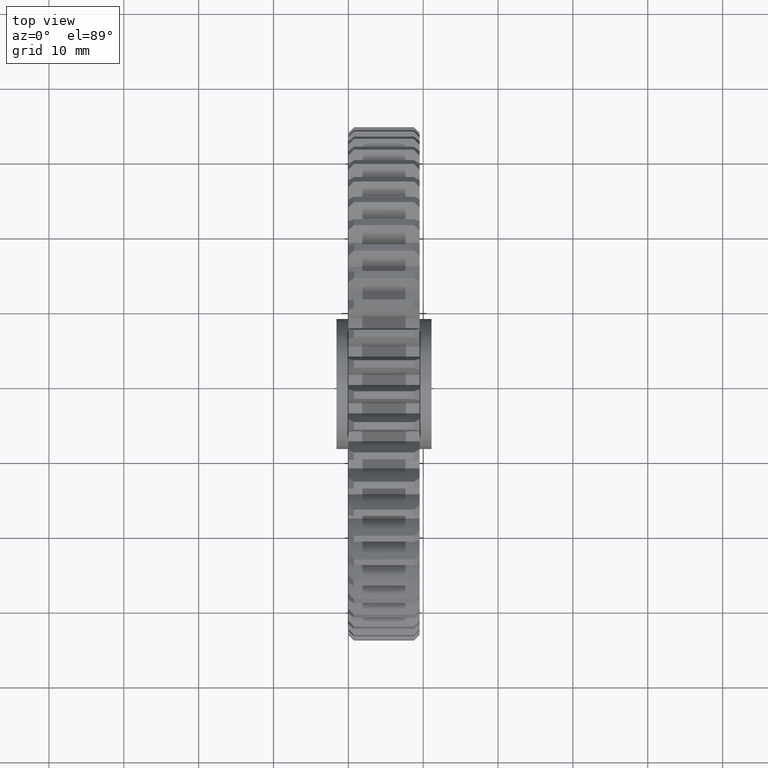
[diagram: clean part render]
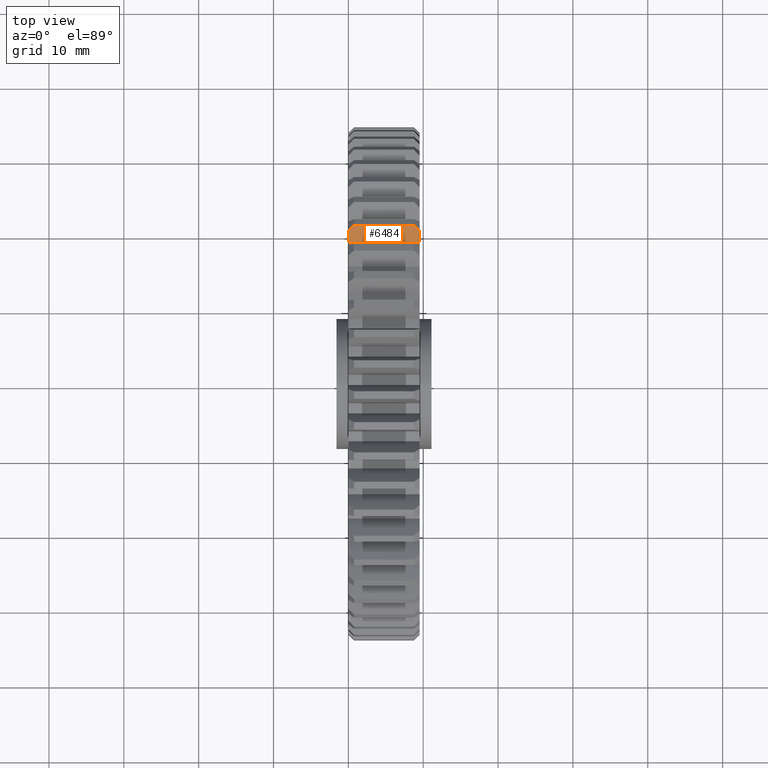
[diagram: same view with one face highlighted and labeled with its STEP entity id]
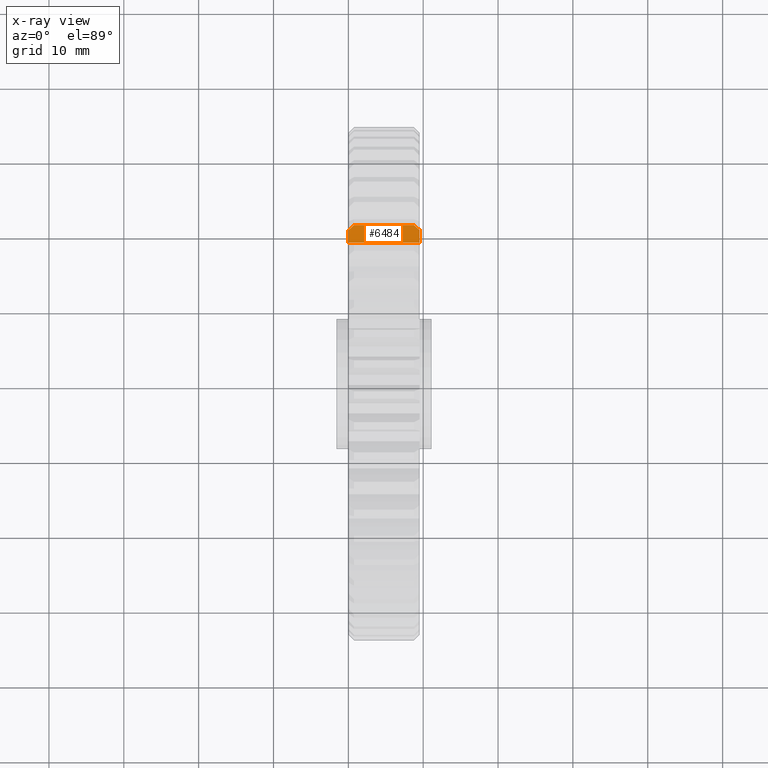
[diagram: x-ray of the same camera — body ghosted, the highlighted face saturated]
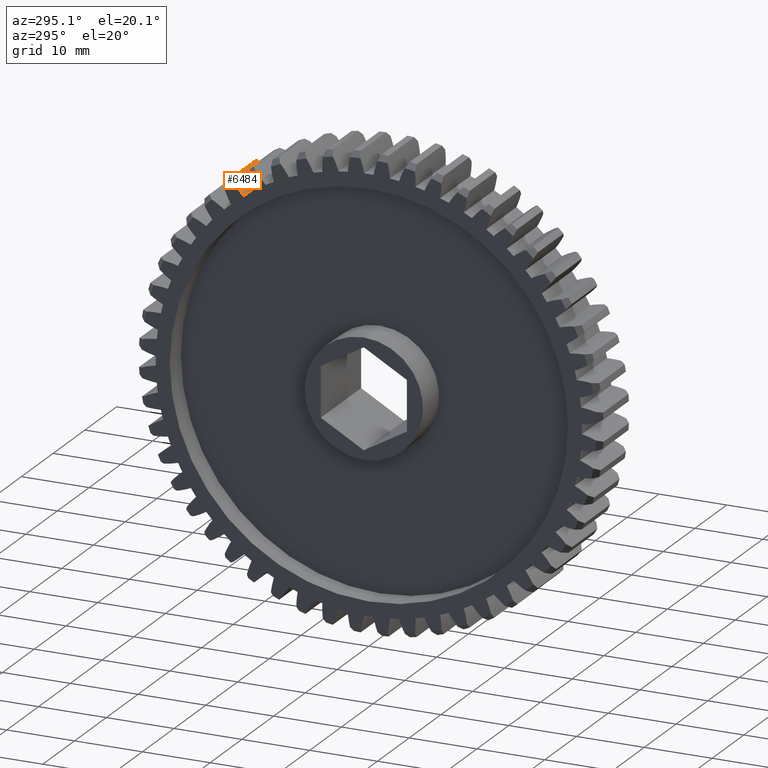
[diagram: same view with one face highlighted and labeled with its STEP entity id]
A machine part, top view. The second image highlights one B-rep face of the part: STEP entity #6484.
The next image is the same camera in x-ray: the body ghosted, the highlighted face saturated — about 0% of this face is hidden behind the body in this view.
A second angle (auxiliary view) of the same face is appended — the face is thin or edge-on in the first view.
In plain terms, the highlighted cylindrical surface (partial cylindrical patch) has radius 13.208 mm, axis along (-1, 0, 0).
Its self-contained STEP definition (entity closure, byte-faithful):
#86 = ORIENTED_EDGE ( 'NONE', *, *, #4431, .T. ) ;
#87 = LINE ( 'NONE', #3708, #3278 ) ;
#184 = DIRECTION ( 'NONE',  ( 1.000000000000000000, -0.0000000000000000000, -0.0000000000000000000 ) ) ;
#904 = VERTEX_POINT ( 'NONE', #957 ) ;
#957 = CARTESIAN_POINT ( 'NONE',  ( 0.0000000000000000000, 0.7901747922948342273, 1.057366444342649148 ) ) ;
#1040 = CARTESIAN_POINT ( 'NONE',  ( 0.02005027318439913872, 0.8077188739426632846, 1.069270744575978371 ) ) ;
#1171 = AXIS2_PLACEMENT_3D ( 'NONE', #3616, #184, #10893 ) ;
#1258 = VECTOR ( 'NONE', #2814, 39.37007874015748143 ) ;
#1490 = EDGE_LOOP ( 'NONE', ( #9180, #86, #4790, #7372, #4999, #4246 ) ) ;
#1756 = VERTEX_POINT ( 'NONE', #2950 ) ;
#1939 = AXIS2_PLACEMENT_3D ( 'NONE', #6302, #3784, #10197 ) ;
#2169 = EDGE_CURVE ( 'NONE', #11054, #1756, #87, .T. ) ;
#2207 = CARTESIAN_POINT ( 'NONE',  ( 0.3450000000000000844, 0.8168194885358274204, 1.074851581916345333 ) ) ;
#2814 = DIRECTION ( 'NONE',  ( -1.000000000000000000, 0.0000000000000000000, 0.0000000000000000000 ) ) ;
#2819 = DIRECTION ( 'NONE',  ( 1.000000000000000000, -0.0000000000000000000, -0.0000000000000000000 ) ) ;
#2946 = CARTESIAN_POINT ( 'NONE',  ( 0.3649490434032615083, 0.7988383735280297770, 1.063439569927996597 ) ) ;
#2950 = CARTESIAN_POINT ( 'NONE',  ( 0.3750000000000000555, 0.7251473766369307405, 1.003396871709583138 ) ) ;
#3278 = VECTOR ( 'NONE', #2819, 39.37007874015748143 ) ;
#3616 = CARTESIAN_POINT ( 'NONE',  ( 0.0000000000000000000, 1.088659438076260866, 0.6315649457159581148 ) ) ;
#3685 = B_SPLINE_CURVE_WITH_KNOTS ( 'NONE', 3,
 ( #8722, #1040, #4342, #8083 ),
 .UNSPECIFIED., .F., .F.,
 ( 4, 4 ),
 ( 4.210279659405068267E-18, 0.001111716499718279783 ),
 .UNSPECIFIED. ) ;
#3708 = CARTESIAN_POINT ( 'NONE',  ( 0.3750000000000000555, 0.7251473766369307405, 1.003396871709583138 ) ) ;
#3784 = DIRECTION ( 'NONE',  ( -1.000000000000000000, 0.0000000000000000000, 0.0000000000000000000 ) ) ;
#4246 = ORIENTED_EDGE ( 'NONE', *, *, #9550, .T. ) ;
#4342 = CARTESIAN_POINT ( 'NONE',  ( 0.01005095659673847959, 0.7988383735280297770, 1.063439569927996597 ) ) ;
#4431 = EDGE_CURVE ( 'NONE', #7115, #904, #3685, .T. ) ;
#4486 = FACE_OUTER_BOUND ( 'NONE', #1490, .T. ) ;
#4790 = ORIENTED_EDGE ( 'NONE', *, *, #7333, .T. ) ;
#4999 = ORIENTED_EDGE ( 'NONE', *, *, #5288, .T. ) ;
#5288 = EDGE_CURVE ( 'NONE', #1756, #7754, #9369, .T. ) ;
#5427 = AXIS2_PLACEMENT_3D ( 'NONE', #7184, #7821, #10976 ) ;
#5582 = B_SPLINE_CURVE_WITH_KNOTS ( 'NONE', 3,
 ( #6586, #2946, #11138, #7476 ),
 .UNSPECIFIED., .F., .F.,
 ( 4, 4 ),
 ( 7.152448122690999100E-18, 0.001111716499718288891 ),
 .UNSPECIFIED. ) ;
#6302 = CARTESIAN_POINT ( 'NONE',  ( 0.3750000000000000555, 1.088659438076260866, 0.6315649457159581148 ) ) ;
#6484 = ADVANCED_FACE ( 'NONE', ( #4486 ), #6674, .T. ) ;
#6586 = CARTESIAN_POINT ( 'NONE',  ( 0.3750000000000000555, 0.7901747922948337832, 1.057366444342649148 ) ) ;
#6674 = CYLINDRICAL_SURFACE ( 'NONE', #1939, 0.5199999999999999067 ) ;
#7115 = VERTEX_POINT ( 'NONE', #8482 ) ;
#7184 = CARTESIAN_POINT ( 'NONE',  ( 0.3750000000000000555, 1.088659438076260866, 0.6315649457159581148 ) ) ;
#7333 = EDGE_CURVE ( 'NONE', #904, #11054, #10511, .T. ) ;
#7343 = LINE ( 'NONE', #11010, #1258 ) ;
#7372 = ORIENTED_EDGE ( 'NONE', *, *, #2169, .T. ) ;
#7476 = CARTESIAN_POINT ( 'NONE',  ( 0.3450000000000000844, 0.8168194885358274204, 1.074851581916345333 ) ) ;
#7754 = VERTEX_POINT ( 'NONE', #9079 ) ;
#7821 = DIRECTION ( 'NONE',  ( -1.000000000000000000, 0.0000000000000000000, 0.0000000000000000000 ) ) ;
#8083 = CARTESIAN_POINT ( 'NONE',  ( 0.0000000000000000000, 0.7901747922948342273, 1.057366444342649148 ) ) ;
#8482 = CARTESIAN_POINT ( 'NONE',  ( 0.02999999999999967970, 0.8168194885358274204, 1.074851581916345333 ) ) ;
#8722 = CARTESIAN_POINT ( 'NONE',  ( 0.02999999999999967970, 0.8168194885358274204, 1.074851581916345333 ) ) ;
#8723 = EDGE_CURVE ( 'NONE', #10268, #7115, #7343, .T. ) ;
#9079 = CARTESIAN_POINT ( 'NONE',  ( 0.3750000000000000555, 0.7901747922948337832, 1.057366444342649148 ) ) ;
#9180 = ORIENTED_EDGE ( 'NONE', *, *, #8723, .T. ) ;
#9369 = CIRCLE ( 'NONE', #5427, 0.5199999999999999067 ) ;
#9550 = EDGE_CURVE ( 'NONE', #7754, #10268, #5582, .T. ) ;
#10197 = DIRECTION ( 'NONE',  ( 0.0000000000000000000, 0.0000000000000000000, 1.000000000000000000 ) ) ;
#10268 = VERTEX_POINT ( 'NONE', #2207 ) ;
#10511 = CIRCLE ( 'NONE', #1171, 0.5199999999999999067 ) ;
#10893 = DIRECTION ( 'NONE',  ( 0.0000000000000000000, 7.880330750954606955E-16, 1.000000000000000000 ) ) ;
#10976 = DIRECTION ( 'NONE',  ( 0.0000000000000000000, 0.0000000000000000000, 1.000000000000000000 ) ) ;
#11010 = CARTESIAN_POINT ( 'NONE',  ( 0.3750000000000000555, 0.8168194885358274204, 1.074851581916345333 ) ) ;
#11054 = VERTEX_POINT ( 'NONE', #11339 ) ;
#11138 = CARTESIAN_POINT ( 'NONE',  ( 0.3549497268156008301, 0.8077188739426631736, 1.069270744575978371 ) ) ;
#11339 = CARTESIAN_POINT ( 'NONE',  ( 0.0000000000000000000, 0.7251473766369307405, 1.003396871709583138 ) ) ;